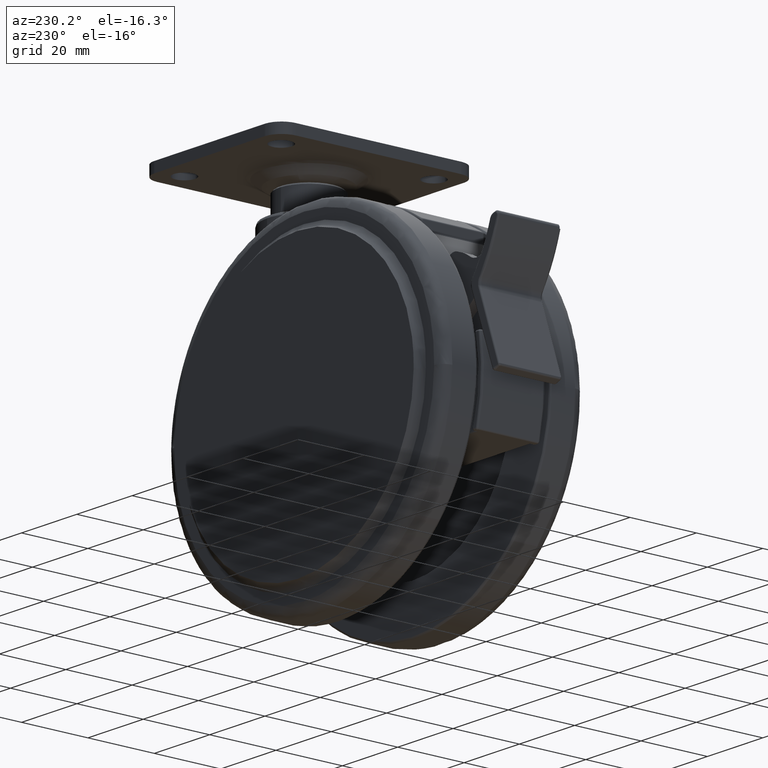
[diagram: clean part render]
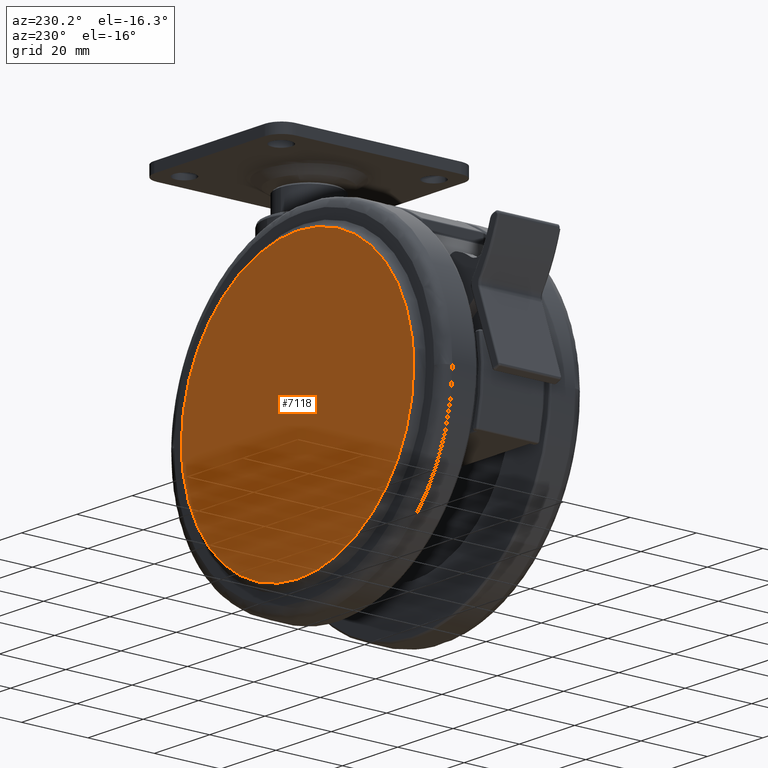
[diagram: same view with one face highlighted and labeled with its STEP entity id]
A machine part, auxiliary view. The second image highlights one B-rep face of the part: STEP entity #7118.
In plain terms, the highlighted face is a freeform B-spline surface patch.
Its self-contained STEP definition (entity closure, byte-faithful):
#7047=CARTESIAN_POINT('',(22.192152411140640,23.500000000000352,-99.695799837191828));
#7048=CARTESIAN_POINT('',(22.192152411140640,23.500000000000352,-7.304197909752721));
#7049=CARTESIAN_POINT('',(-70.192154664018346,23.500000000000352,-99.695799837191828));
#7050=CARTESIAN_POINT('',(-70.192154664018346,23.500000000000352,-7.304197909752721));
#7051=B_SPLINE_SURFACE_WITH_KNOTS('',1,1,((#7047,#7049),(#7048,#7050)),.UNSPECIFIED.,.F.,.F.,.U.,(2,2),(2,2),(0.0,92.391601927439112),(0.0,92.384307075158986),.UNSPECIFIED.);
#7052=CARTESIAN_POINT('',(-65.996683856656148,23.499999998902741,-54.027773675112208));
#7053=VERTEX_POINT('',#7052);
#7054=CARTESIAN_POINT('',(-24.0,23.500000000000011,-95.500000000000114));
#7055=VERTEX_POINT('',#7054);
#7056=CARTESIAN_POINT('',(-65.996683856656148,23.499999998902744,-54.027773675112208));
#7057=CARTESIAN_POINT('',(-65.475501056145134,23.499999999451383,-95.500000000000654));
#7058=CARTESIAN_POINT('',(-24.0,23.500000000000011,-95.500000000000114));
#7066=(BOUNDED_CURVE()B_SPLINE_CURVE(2,(#7056,#7057,#7058),.UNSPECIFIED.,.F.,.U.)B_SPLINE_CURVE_WITH_KNOTS((3,3),(0.752215704078315,1.0),.UNSPECIFIED.)CURVE()GEOMETRIC_REPRESENTATION_ITEM()RATIONAL_B_SPLINE_CURVE((0.994854295643914,0.709702639984290,1.0))REPRESENTATION_ITEM(''));
#7067=EDGE_CURVE('',#7053,#7055,#7066,.T.);
#7068=ORIENTED_EDGE('',*,*,#7067,.F.);
#7069=CARTESIAN_POINT('',(-24.0,23.500000000000000,-11.500000000000000));
#7070=VERTEX_POINT('',#7069);
#7071=CARTESIAN_POINT('',(-24.0,23.500000000000000,-11.500000000000000));
#7072=CARTESIAN_POINT('',(-66.000000000047407,23.499999999458222,-11.500000000000597));
#7073=CARTESIAN_POINT('',(-66.000000000095412,23.499999998909590,-53.500000000001208));
#7074=CARTESIAN_POINT('',(-66.000000000095710,23.499999998906141,-53.763897255665675));
#7075=CARTESIAN_POINT('',(-65.996683856656148,23.499999998902744,-54.027773675112208));
#7083=(BOUNDED_CURVE()B_SPLINE_CURVE(2,(#7071,#7072,#7073,#7074,#7075),.UNSPECIFIED.,.F.,.U.)B_SPLINE_CURVE_WITH_KNOTS((3,2,3),(0.500000000000000,0.750000000000000,0.752215704078315),.UNSPECIFIED.)CURVE()GEOMETRIC_REPRESENTATION_ITEM()RATIONAL_B_SPLINE_CURVE((1.0,0.707106781186547,1.0,0.997404141202258,0.994854295643914))REPRESENTATION_ITEM(''));
#7084=EDGE_CURVE('',#7070,#7053,#7083,.T.);
#7085=ORIENTED_EDGE('',*,*,#7084,.F.);
#7086=CARTESIAN_POINT('',(17.996683856656130,23.499999998902730,-52.972226324887792));
#7087=VERTEX_POINT('',#7086);
#7088=CARTESIAN_POINT('',(17.996683856656123,23.499999998902734,-52.972226324887792));
#7089=CARTESIAN_POINT('',(17.475501056145124,23.499999999451372,-11.499999999999401));
#7090=CARTESIAN_POINT('',(-24.0,23.500000000000000,-11.500000000000000));
#7098=(BOUNDED_CURVE()B_SPLINE_CURVE(2,(#7088,#7089,#7090),.UNSPECIFIED.,.F.,.U.)B_SPLINE_CURVE_WITH_KNOTS((3,3),(0.252215704078315,0.500000000000000),.UNSPECIFIED.)CURVE()GEOMETRIC_REPRESENTATION_ITEM()RATIONAL_B_SPLINE_CURVE((0.994854295643914,0.709702639984290,1.0))REPRESENTATION_ITEM(''));
#7099=EDGE_CURVE('',#7087,#7070,#7098,.T.);
#7100=ORIENTED_EDGE('',*,*,#7099,.F.);
#7101=CARTESIAN_POINT('',(-24.0,23.500000000000011,-95.500000000000114));
#7102=CARTESIAN_POINT('',(18.000000000047397,23.499999999458236,-95.499999999999474));
#7103=CARTESIAN_POINT('',(18.000000000095380,23.499999998909590,-53.499999999998813));
#7104=CARTESIAN_POINT('',(18.000000000095685,23.499999998906141,-53.236102744334346));
#7105=CARTESIAN_POINT('',(17.996683856656123,23.499999998902734,-52.972226324887792));
#7113=(BOUNDED_CURVE()B_SPLINE_CURVE(2,(#7101,#7102,#7103,#7104,#7105),.UNSPECIFIED.,.F.,.U.)B_SPLINE_CURVE_WITH_KNOTS((3,2,3),(0.0,0.250000000000000,0.252215704078315),.UNSPECIFIED.)CURVE()GEOMETRIC_REPRESENTATION_ITEM()RATIONAL_B_SPLINE_CURVE((1.0,0.707106781186547,1.0,0.997404141202258,0.994854295643914))REPRESENTATION_ITEM(''));
#7114=EDGE_CURVE('',#7055,#7087,#7113,.T.);
#7115=ORIENTED_EDGE('',*,*,#7114,.F.);
#7116=EDGE_LOOP('',(#7068,#7085,#7100,#7115));
#7117=FACE_OUTER_BOUND('',#7116,.T.);
#7118=ADVANCED_FACE('',(#7117),#7051,.F.);